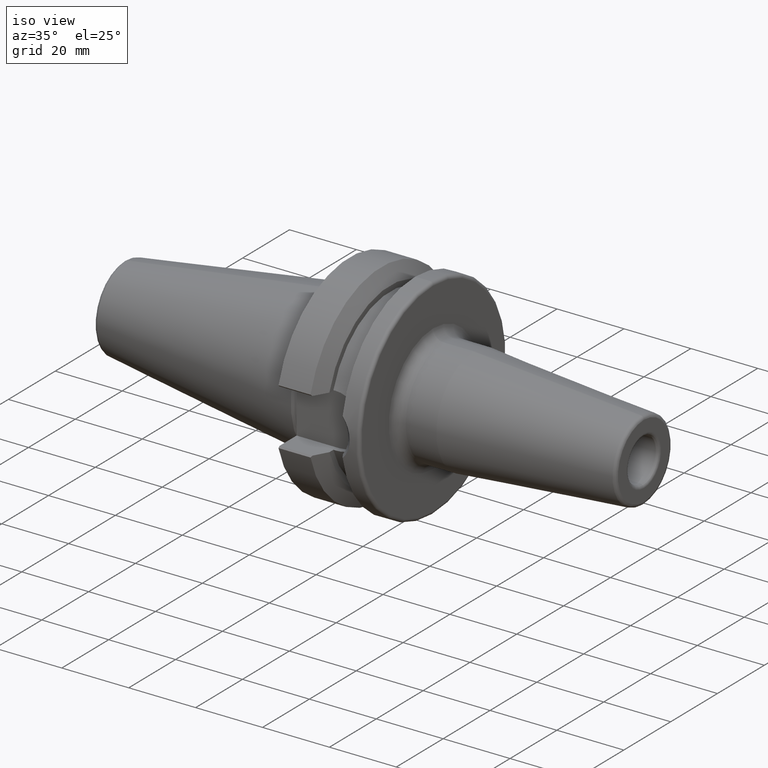
[diagram: clean part render]
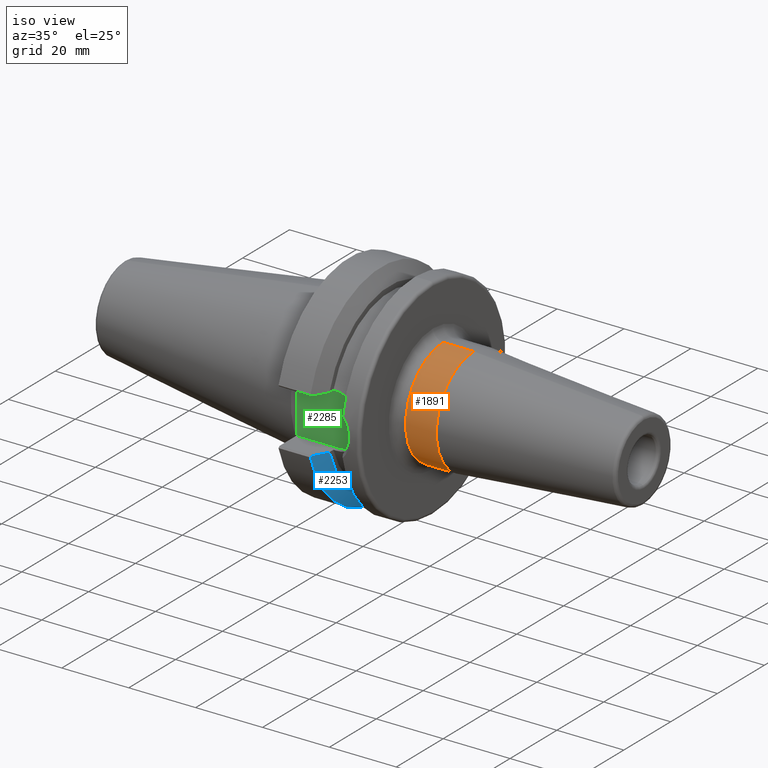
[diagram: same view with three faces highlighted in distinct colors, each labeled with its STEP entity id]
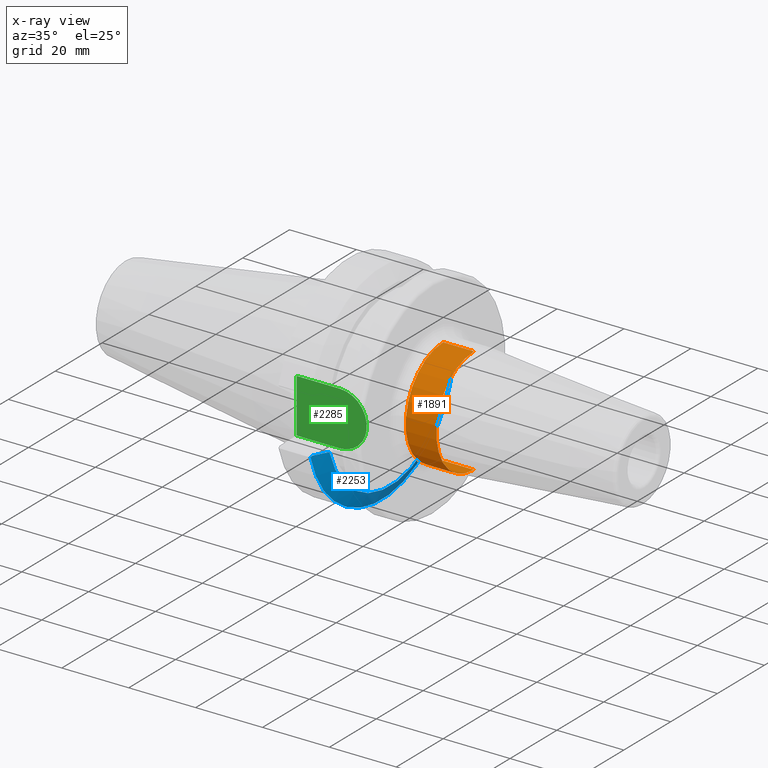
[diagram: x-ray of the same camera — body ghosted, the three highlighted faces saturated]
A machine part, iso view with three faces highlighted in distinct colors.
The next image is the same camera in x-ray (body ghosted, the three faces saturated) — at least one of them is partly hidden behind the body in this view.
Their STEP definitions:

[orange] entity #1891 — the highlighted cylindrical surface (partial cylindrical patch) has radius 16 mm, axis along (1, 0, 0).
#435=DIRECTION('',(-1.E0,0.E0,0.E0));
#436=VECTOR('',#435,9.175181055302E0);
#437=CARTESIAN_POINT('',(3.917518105530E1,0.E0,-1.6E1));
#438=LINE('',#437,#436);
#439=DIRECTION('',(-1.E0,0.E0,0.E0));
#440=VECTOR('',#439,9.175181055302E0);
#441=CARTESIAN_POINT('',(3.917518105530E1,0.E0,1.6E1));
#442=LINE('',#441,#440);
#443=CARTESIAN_POINT('',(3.917518105530E1,0.E0,0.E0));
#444=DIRECTION('',(-1.E0,0.E0,0.E0));
#445=DIRECTION('',(0.E0,0.E0,-1.E0));
#446=AXIS2_PLACEMENT_3D('',#443,#444,#445);
#453=CARTESIAN_POINT('',(3.E1,0.E0,0.E0));
#454=DIRECTION('',(-1.E0,0.E0,0.E0));
#455=DIRECTION('',(0.E0,0.E0,-1.E0));
#456=AXIS2_PLACEMENT_3D('',#453,#454,#455);
#1175=CARTESIAN_POINT('',(3.917518105530E1,0.E0,-1.6E1));
#1176=VERTEX_POINT('',#1175);
#1177=CARTESIAN_POINT('',(3.E1,0.E0,-1.6E1));
#1178=VERTEX_POINT('',#1177);
#1197=CARTESIAN_POINT('',(3.917518105530E1,0.E0,1.6E1));
#1198=VERTEX_POINT('',#1197);
#1199=CARTESIAN_POINT('',(3.E1,0.E0,1.6E1));
#1200=VERTEX_POINT('',#1199);
#1879=CARTESIAN_POINT('',(2.385E1,0.E0,0.E0));
#1880=DIRECTION('',(1.E0,0.E0,0.E0));
#1881=DIRECTION('',(0.E0,0.E0,1.E0));
#1882=AXIS2_PLACEMENT_3D('',#1879,#1880,#1881);
#1883=CYLINDRICAL_SURFACE('',#1882,1.6E1);
#1884=ORIENTED_EDGE('',*,*,#1869,.T.);
#1886=ORIENTED_EDGE('',*,*,#1885,.T.);
#1887=ORIENTED_EDGE('',*,*,#1872,.F.);
#1888=ORIENTED_EDGE('',*,*,#1843,.F.);
#1889=EDGE_LOOP('',(#1884,#1886,#1887,#1888));
#1890=FACE_OUTER_BOUND('',#1889,.F.);
#1891=ADVANCED_FACE('',(#1890),#1883,.T.);
#447=CIRCLE('',#446,1.6E1);
#457=CIRCLE('',#456,1.6E1);
#1843=EDGE_CURVE('',#1176,#1198,#447,.T.);
#1869=EDGE_CURVE('',#1176,#1178,#438,.T.);
#1872=EDGE_CURVE('',#1198,#1200,#442,.T.);
#1885=EDGE_CURVE('',#1178,#1200,#457,.T.);

[blue] entity #2253 — the highlighted conical surface has half-angle 60 deg.
#787=CARTESIAN_POINT('',(1.41E1,-2.589378524176E1,-8.05E0));
#788=CARTESIAN_POINT('',(1.386450341249E1,-2.632093406585E1,-8.05E0));
#789=CARTESIAN_POINT('',(1.338588596161E1,-2.718719807101E1,-8.05E0));
#790=CARTESIAN_POINT('',(1.264535505638E1,-2.852228716965E1,-8.05E0));
#791=CARTESIAN_POINT('',(1.213636940407E1,-2.943672353446E1,-8.05E0));
#792=CARTESIAN_POINT('',(1.187809346105E1,-2.99E1,-8.05E0));
#794=CARTESIAN_POINT('',(1.41E1,0.E0,0.E0));
#795=DIRECTION('',(1.E0,0.E0,0.E0));
#796=DIRECTION('',(0.E0,-9.549178917964E-1,-2.968700387830E-1));
#797=AXIS2_PLACEMENT_3D('',#794,#795,#796);
#799=CARTESIAN_POINT('',(1.187809346105E1,2.99E1,-8.05E0));
#800=CARTESIAN_POINT('',(1.213608053432E1,2.943724168785E1,-8.05E0));
#801=CARTESIAN_POINT('',(1.264468269184E1,2.852349654788E1,-8.05E0));
#802=CARTESIAN_POINT('',(1.338523678300E1,2.718837129527E1,-8.05E0));
#803=CARTESIAN_POINT('',(1.386422607045E1,2.632143711487E1,-8.05E0));
#804=CARTESIAN_POINT('',(1.41E1,2.589378524176E1,-8.05E0));
#806=CARTESIAN_POINT('',(1.187809346105E1,2.99E1,-8.05E0));
#807=CARTESIAN_POINT('',(1.184412243022E1,2.994800919416E1,-8.098009194156E0));
#808=CARTESIAN_POINT('',(1.177593456126E1,3.004428424075E1,-8.194284240747E0));
#809=CARTESIAN_POINT('',(1.167291601044E1,3.018946614020E1,-8.339466140200E0));
#810=CARTESIAN_POINT('',(1.160374493301E1,3.028676841650E1,-8.436768416504E0));
#811=CARTESIAN_POINT('',(1.15690365E1,3.033554803451E1,-8.485548034509E0));
#813=CARTESIAN_POINT('',(1.15690365E1,0.E0,0.E0));
#814=DIRECTION('',(-1.E0,0.E0,0.E0));
#815=DIRECTION('',(0.E0,9.630332709368E-1,-2.693824772860E-1));
#816=AXIS2_PLACEMENT_3D('',#813,#814,#815);
#818=CARTESIAN_POINT('',(1.15690365E1,-3.033554803451E1,-8.485548034509E0));
#819=CARTESIAN_POINT('',(1.162109299730E1,-3.026238725388E1,-8.412387253883E0));
#820=CARTESIAN_POINT('',(1.172465915984E1,-3.011663519535E1,-8.266635195345E0));
#821=CARTESIAN_POINT('',(1.182713113718E1,-2.997202195639E1,-8.122021956386E0));
#822=CARTESIAN_POINT('',(1.187809346105E1,-2.99E1,-8.05E0));
#1006=CARTESIAN_POINT('',(1.41E1,2.589378524176E1,-8.05E0));
#1008=VERTEX_POINT('',#1006);
#1106=VERTEX_POINT('',#806);
#1107=VERTEX_POINT('',#811);
#1122=CARTESIAN_POINT('',(1.15690365E1,-3.033554803451E1,-8.485548034509E0));
#1124=VERTEX_POINT('',#1122);
#1136=VERTEX_POINT('',#787);
#1137=VERTEX_POINT('',#792);
#2237=CARTESIAN_POINT('',(1.283451825E1,0.E0,0.E0));
#2238=DIRECTION('',(-1.E0,0.E0,0.E0));
#2239=DIRECTION('',(0.E0,0.E0,-1.E0));
#2240=AXIS2_PLACEMENT_3D('',#2237,#2238,#2239);
#2241=CONICAL_SURFACE('',#2240,2.930812131295E1,6.E1);
#2242=ORIENTED_EDGE('',*,*,#2048,.F.);
#2244=ORIENTED_EDGE('',*,*,#2243,.T.);
#2246=ORIENTED_EDGE('',*,*,#2245,.F.);
#2248=ORIENTED_EDGE('',*,*,#2247,.T.);
#2249=ORIENTED_EDGE('',*,*,#2164,.T.);
#2250=ORIENTED_EDGE('',*,*,#2210,.T.);
#2251=EDGE_LOOP('',(#2242,#2244,#2246,#2248,#2249,#2250));
#2252=FACE_OUTER_BOUND('',#2251,.F.);
#2253=ADVANCED_FACE('',(#2252),#2241,.T.);
#793=B_SPLINE_CURVE_WITH_KNOTS('',3,(#787,#788,#789,#790,#791,#792),
.UNSPECIFIED.,.F.,.F.,(4,1,1,4),(0.E0,3.333333333333E-1,6.666666666667E-1,1.E0),
.UNSPECIFIED.);
#798=CIRCLE('',#797,2.711624262590E1);
#805=B_SPLINE_CURVE_WITH_KNOTS('',3,(#799,#800,#801,#802,#803,#804),
.UNSPECIFIED.,.F.,.F.,(4,1,1,4),(0.E0,3.333333333333E-1,6.666666666667E-1,1.E0),
.UNSPECIFIED.);
#812=B_SPLINE_CURVE_WITH_KNOTS('',3,(#806,#807,#808,#809,#810,#811),
.UNSPECIFIED.,.F.,.F.,(4,1,1,4),(0.E0,3.333333333333E-1,6.666666666667E-1,1.E0),
.UNSPECIFIED.);
#817=CIRCLE('',#816,3.15E1);
#823=B_SPLINE_CURVE_WITH_KNOTS('',3,(#818,#819,#820,#821,#822),.UNSPECIFIED.,
.F.,.F.,(4,1,4),(0.E0,5.E-1,1.E0),.UNSPECIFIED.);
#2048=EDGE_CURVE('',#1136,#1137,#793,.T.);
#2164=EDGE_CURVE('',#1107,#1124,#817,.T.);
#2210=EDGE_CURVE('',#1124,#1137,#823,.T.);
#2243=EDGE_CURVE('',#1136,#1008,#798,.T.);
#2245=EDGE_CURVE('',#1106,#1008,#805,.T.);
#2247=EDGE_CURVE('',#1106,#1107,#812,.T.);

[green] entity #2285 — the highlighted planar face has unit normal (0, 1, 0).
#828=CARTESIAN_POINT('',(1.495E1,-2.26E1,0.E0));
#829=DIRECTION('',(0.E0,1.E0,0.E0));
#830=DIRECTION('',(0.E0,0.E0,1.E0));
#831=AXIS2_PLACEMENT_3D('',#828,#829,#830);
#833=DIRECTION('',(-1.E0,0.E0,0.E0));
#834=VECTOR('',#833,1.295E1);
#835=CARTESIAN_POINT('',(1.495E1,-2.26E1,-8.05E0));
#836=LINE('',#835,#834);
#837=DIRECTION('',(1.E0,0.E0,0.E0));
#838=VECTOR('',#837,1.295E1);
#839=CARTESIAN_POINT('',(2.E0,-2.26E1,8.05E0));
#840=LINE('',#839,#838);
#851=DIRECTION('',(0.E0,0.E0,-1.E0));
#852=VECTOR('',#851,1.61E1);
#853=CARTESIAN_POINT('',(2.E0,-2.26E1,8.05E0));
#854=LINE('',#853,#852);
#1126=CARTESIAN_POINT('',(2.E0,-2.26E1,8.05E0));
#1127=CARTESIAN_POINT('',(2.E0,-2.26E1,-8.05E0));
#1128=VERTEX_POINT('',#1126);
#1129=VERTEX_POINT('',#1127);
#1153=CARTESIAN_POINT('',(1.495E1,-2.26E1,-8.05E0));
#1155=VERTEX_POINT('',#1153);
#1157=CARTESIAN_POINT('',(1.495E1,-2.26E1,8.05E0));
#1158=VERTEX_POINT('',#1157);
#2273=CARTESIAN_POINT('',(0.E0,-2.26E1,0.E0));
#2274=DIRECTION('',(0.E0,1.E0,0.E0));
#2275=DIRECTION('',(1.E0,0.E0,0.E0));
#2276=AXIS2_PLACEMENT_3D('',#2273,#2274,#2275);
#2277=PLANE('',#2276);
#2278=ORIENTED_EDGE('',*,*,#2020,.T.);
#2279=ORIENTED_EDGE('',*,*,#2054,.T.);
#2281=ORIENTED_EDGE('',*,*,#2280,.F.);
#2282=ORIENTED_EDGE('',*,*,#2260,.T.);
#2283=EDGE_LOOP('',(#2278,#2279,#2281,#2282));
#2284=FACE_OUTER_BOUND('',#2283,.F.);
#2285=ADVANCED_FACE('',(#2284),#2277,.F.);
#832=CIRCLE('',#831,8.05E0);
#2020=EDGE_CURVE('',#1158,#1155,#832,.T.);
#2054=EDGE_CURVE('',#1155,#1129,#836,.T.);
#2260=EDGE_CURVE('',#1128,#1158,#840,.T.);
#2280=EDGE_CURVE('',#1128,#1129,#854,.T.);